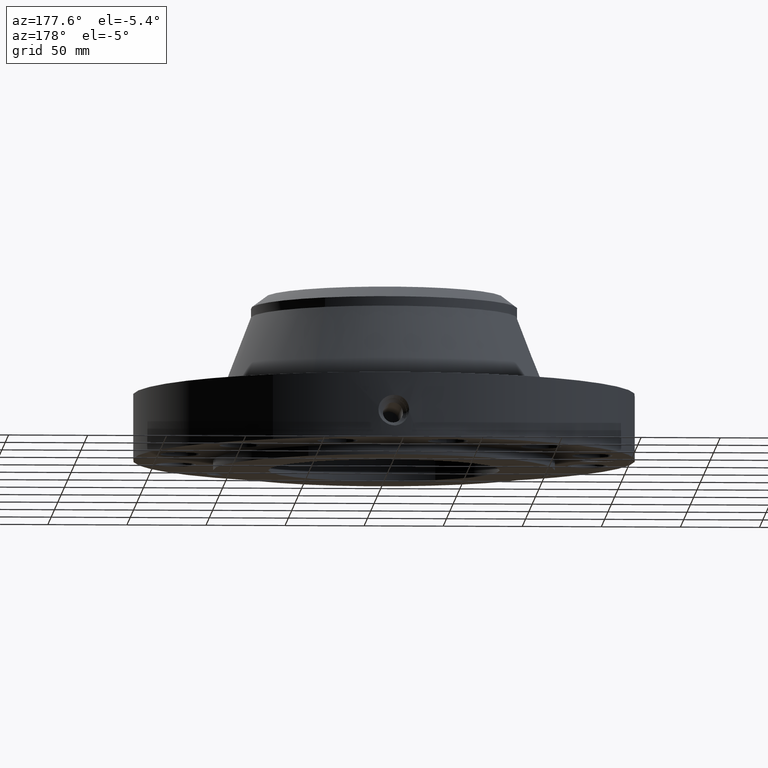
[diagram: clean part render]
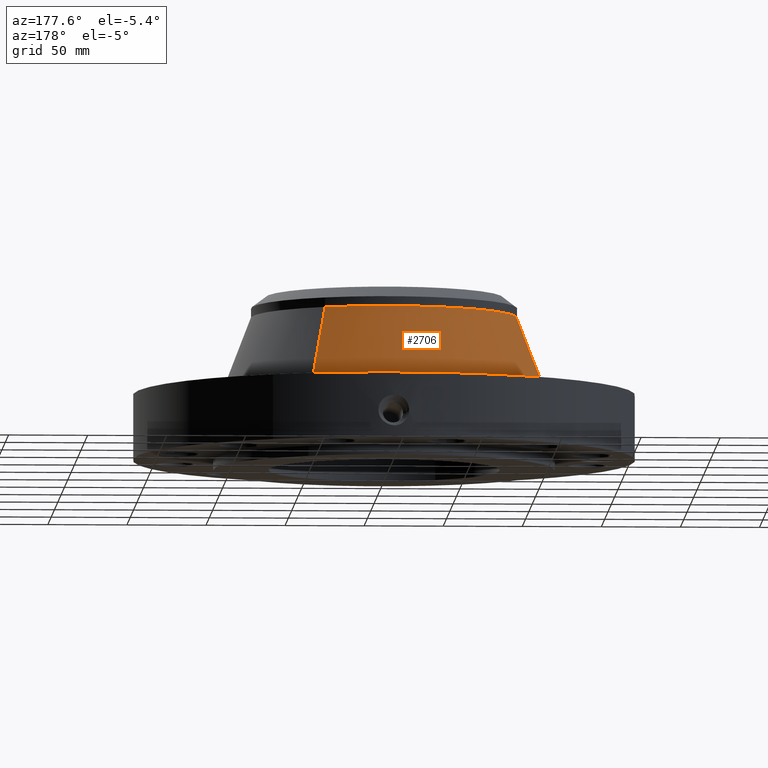
[diagram: same view with one face highlighted and labeled with its STEP entity id]
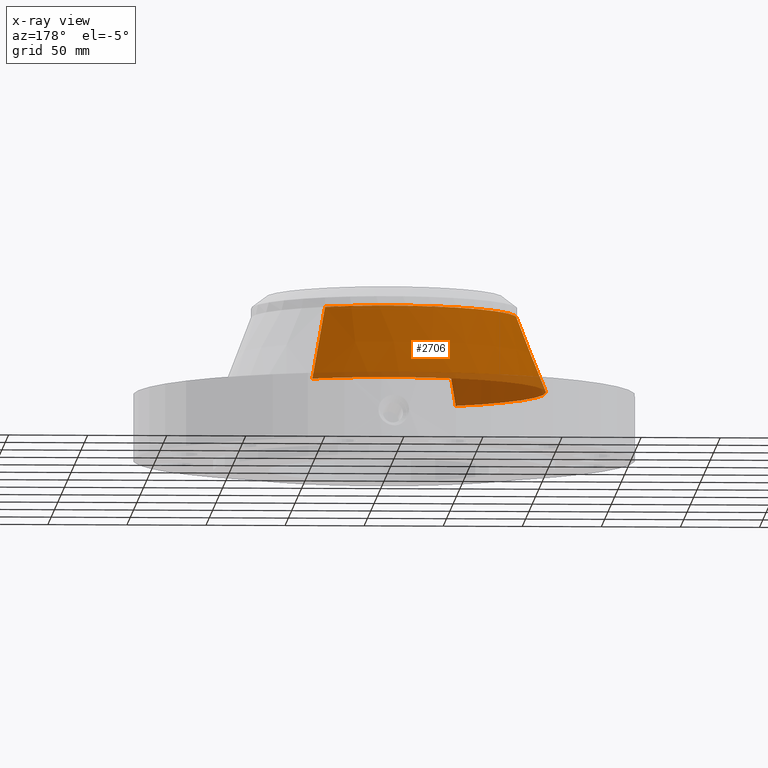
[diagram: x-ray of the same camera — body ghosted, the highlighted face saturated]
A machine part, auxiliary view. The second image highlights one B-rep face of the part: STEP entity #2706.
The next image is the same camera in x-ray: the body ghosted, the highlighted face saturated — about 20% of this face is hidden behind the body in this view.
In plain terms, the highlighted conical surface has half-angle 21.099 deg.
Its self-contained STEP definition (entity closure, byte-faithful):
#2034=AXIS2_PLACEMENT_3D('Circle Axis2P3D',#2032,#2033,$) ;
#2667=AXIS2_PLACEMENT_3D('Cone Axis2P3D',#2664,#2665,#2666) ;
#2697=AXIS2_PLACEMENT_3D('Circle Axis2P3D',#2695,#2696,$) ;
#2010=CARTESIAN_POINT('Vertex',(1.93226031698,3.53697878539,1.94680199497)) ;
#2017=CARTESIAN_POINT('Vertex',(-1.93226031698,-3.53697878539,1.94680199497)) ;
#2032=CARTESIAN_POINT('Axis2P3D Location',(0.,0.,1.94680199497)) ;
#2664=CARTESIAN_POINT('Axis2P3D Location',(0.,0.,3.80079539917)) ;
#2669=CARTESIAN_POINT('Line Origine',(1.76077798873,3.22308248904,2.87379869707)) ;
#2673=CARTESIAN_POINT('Vertex',(1.58929566048,2.90918619268,3.80079539917)) ;
#2680=CARTESIAN_POINT('Vertex',(-1.58929566048,-2.90918619268,3.80079539917)) ;
#2683=CARTESIAN_POINT('Line Origine',(-1.76077798873,-3.22308248904,2.87379869707)) ;
#2695=CARTESIAN_POINT('Axis2P3D Location',(0.,0.,3.80079539917)) ;
#2033=DIRECTION('Axis2P3D Direction',(0.,0.,-0.0393700787402)) ;
#2665=DIRECTION('Axis2P3D Direction',(0.,0.,-0.0393700787402)) ;
#2666=DIRECTION('Axis2P3D XDirection',(-0.0188750212049,-0.0345504945626,0.)) ;
#2670=DIRECTION('Vector Direction',(0.00679469384317,0.0124376036527,-0.0367306581885)) ;
#2684=DIRECTION('Vector Direction',(-0.00679469384317,-0.0124376036527,-0.0367306581885)) ;
#2696=DIRECTION('Axis2P3D Direction',(0.,0.,-0.0393700787402)) ;
#2671=VECTOR('Line Direction',#2670,0.0393700787402) ;
#2685=VECTOR('Line Direction',#2684,0.0393700787402) ;
#2701=ORIENTED_EDGE('',*,*,#2036,.F.) ;
#2702=ORIENTED_EDGE('',*,*,#2687,.T.) ;
#2703=ORIENTED_EDGE('',*,*,#2699,.T.) ;
#2704=ORIENTED_EDGE('',*,*,#2675,.F.) ;
#2706=ADVANCED_FACE('PartBody',(#2705),#2668,.T.) ;
#2035=CIRCLE('generated circle',#2034,4.03036584703) ;
#2698=CIRCLE('generated circle',#2697,3.31500000001) ;
#2668=CONICAL_SURFACE('Cone',#2667,3.31500000001,0.3682500741) ;
#2036=EDGE_CURVE('',#2018,#2011,#2035,.T.) ;
#2675=EDGE_CURVE('',#2011,#2674,#2672,.F.) ;
#2687=EDGE_CURVE('',#2018,#2681,#2686,.F.) ;
#2699=EDGE_CURVE('',#2681,#2674,#2698,.T.) ;
#2700=EDGE_LOOP('',(#2701,#2702,#2703,#2704)) ;
#2705=FACE_OUTER_BOUND('',#2700,.T.) ;
#2672=LINE('Line',#2669,#2671) ;
#2686=LINE('Line',#2683,#2685) ;
#2011=VERTEX_POINT('',#2010) ;
#2018=VERTEX_POINT('',#2017) ;
#2674=VERTEX_POINT('',#2673) ;
#2681=VERTEX_POINT('',#2680) ;